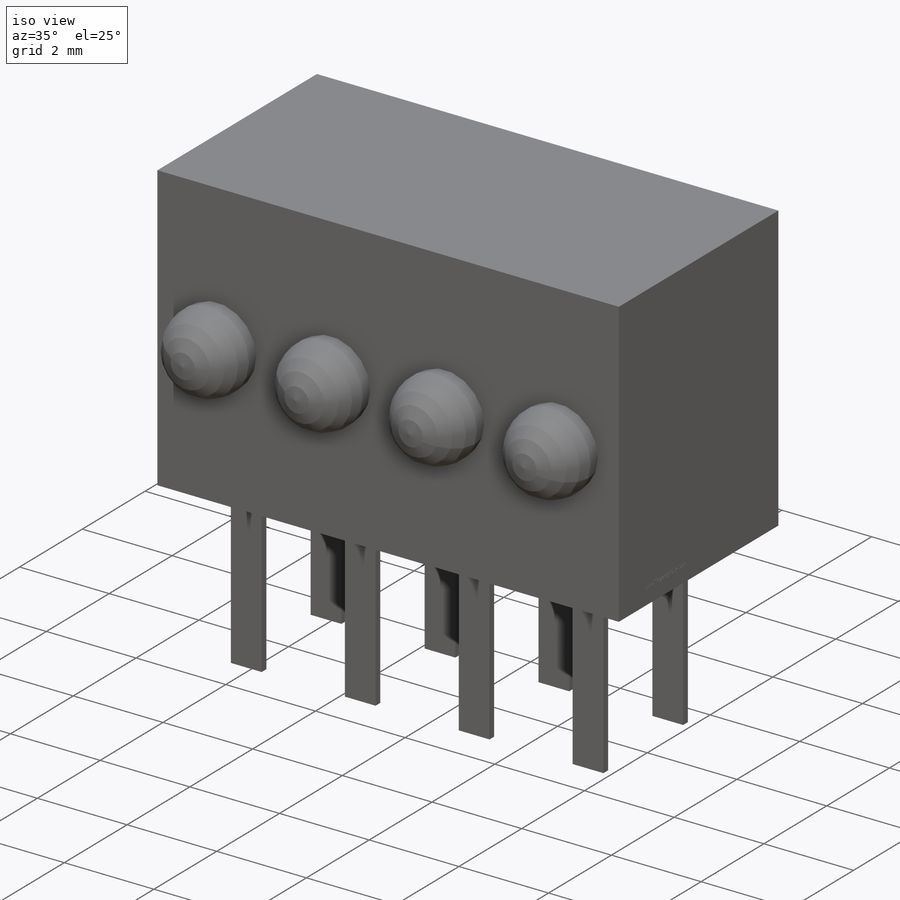
[diagram: iso view]
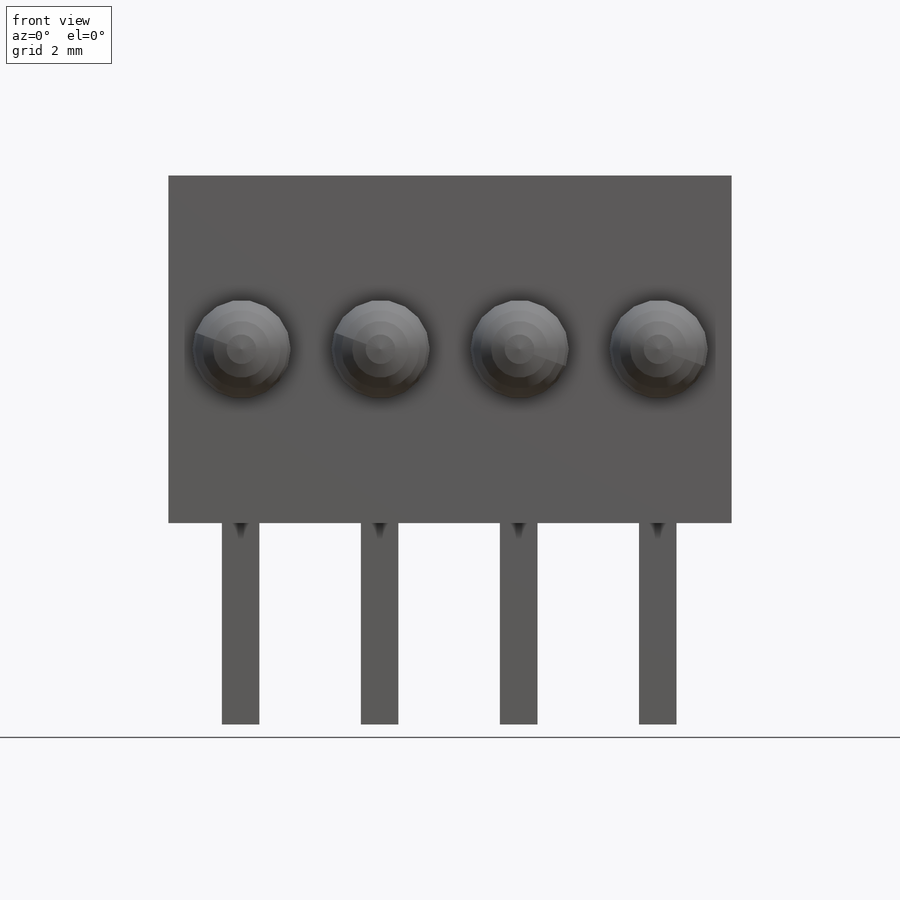
[diagram: front view]
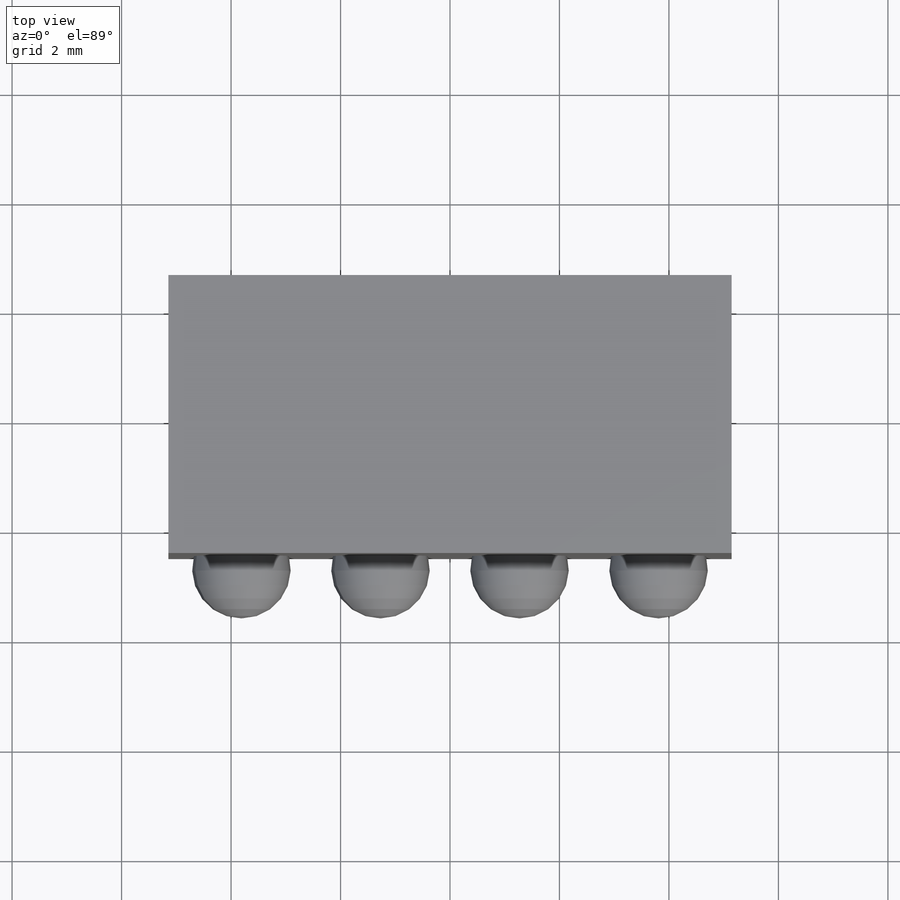
[diagram: top view]
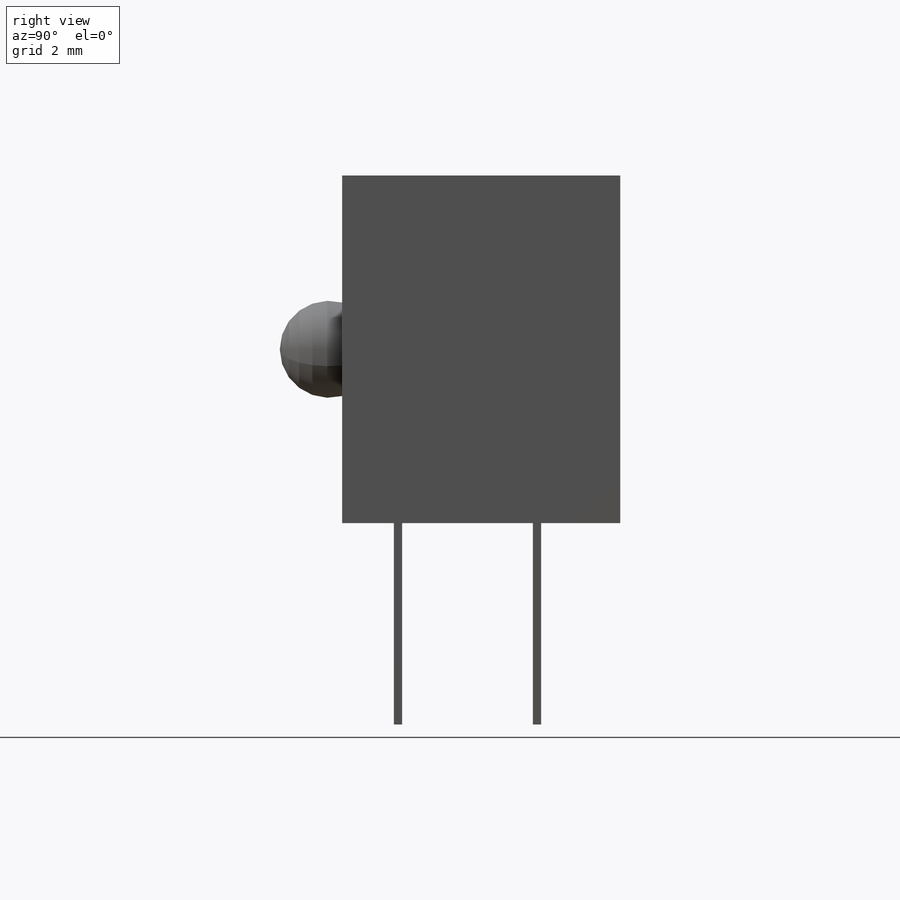
[diagram: right view]
SOLIDWORKS PART (.sldprt)
format: sldprt  version: not decoded by parser v0  size: 663,552 bytes
history: native  units: mm
features: sketch x7, revolve x4, extrude x2, material x1, cut_extrude x1 (+11 scaffold rows collapsed)
feature tree (26):
  scaffold x11  (default folders/planes/origin — collapsed)
  material  "Material <not specified>"
  sketch  "Sketch1"  dims[D4=1.8mm D1=10.29mm D2=5.08mm D3=1.14mm D5=2.54mm D6=2.54mm D7=2.54mm]
  extrude  "Extrude1"  Depth=6.35mm
  revolve  "Revolve1"  [1 undecoded]
  sketch  "Sketch1<3>"  dims[D1=360.0deg]
  revolve  "Revolve2"  [1 undecoded]
  sketch  "Sketch1<4>"  dims[D1=360.0deg]
  revolve  "Revolve3"  [1 undecoded]
  sketch  "Sketch1<5>"  dims[D1=360.0deg]
  revolve  "Revolve4"  [1 undecoded]
  sketch  "Sketch1<6>"  dims[D1=360.0deg]
  sketch  "Sketch2"  dims[D1=2.54mm D2=2.54mm D3=2.54mm D4=0.686mm D5=0.15mm D6=1.35mm D7=2.54mm D8=1.02mm]
  extrude  "Extrude2"  Depth=3.68mm
  sketch  "Sketch3"  dims[D1=~3.015122mm]
  cut_extrude  "Cut-Extrude1"  Depth=0.01mm
decode coverage: 10 of 14 modeling features carry decoded parameters
note: ~ marks probable driven/reference dimensions
note: 4 parameter values undecoded
summary: no parameter record found for 4 features
note: suppression state not decoded; provenance and decode notes live in map.json
